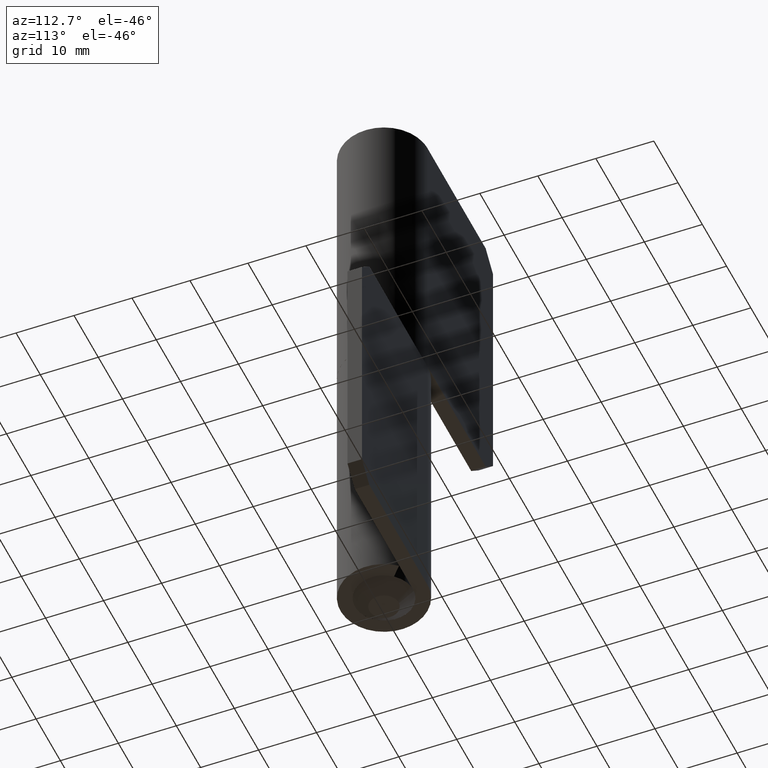
[diagram: clean part render]
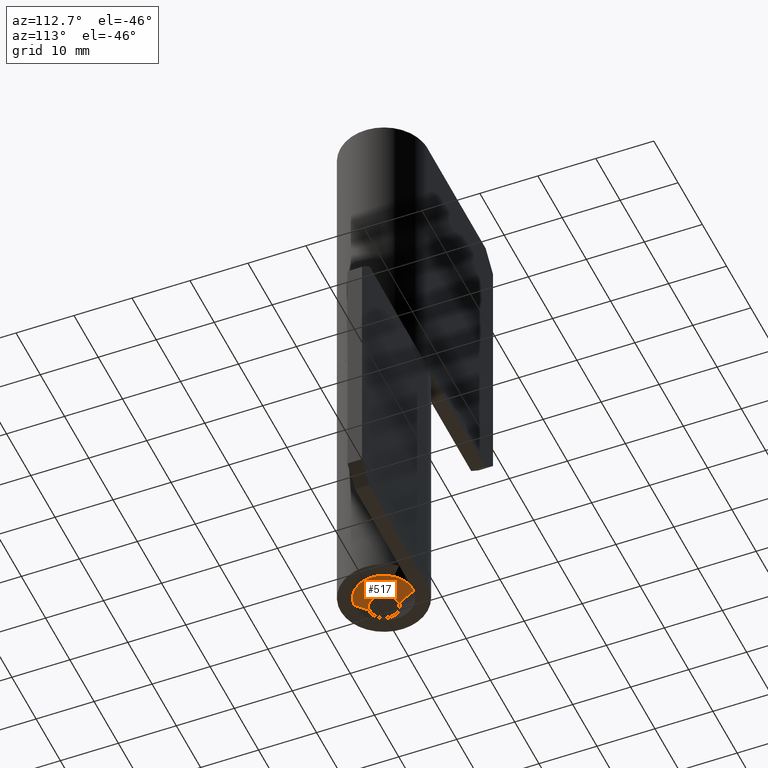
[diagram: same view with one face highlighted and labeled with its STEP entity id]
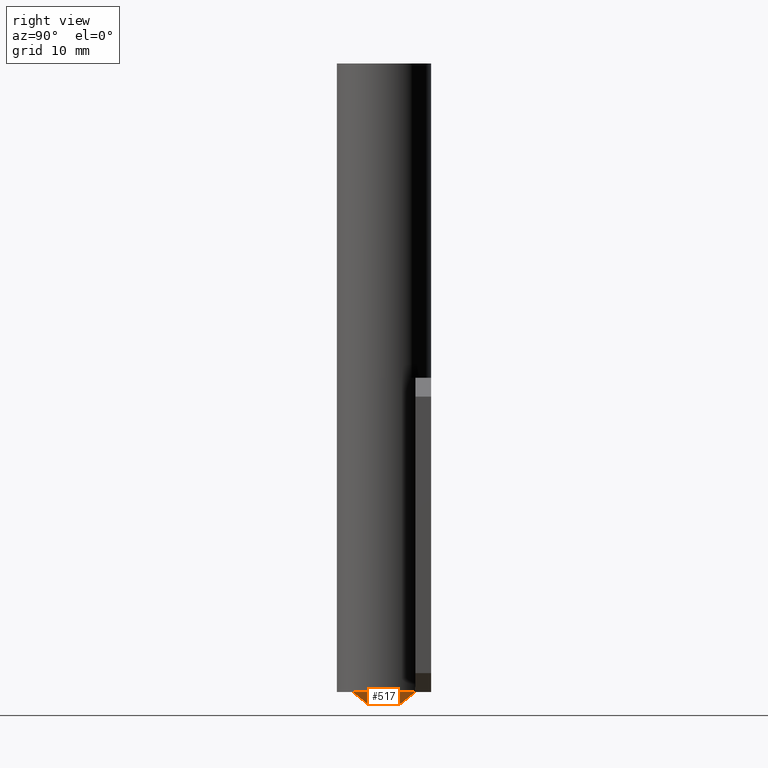
[diagram: same view with one face highlighted and labeled with its STEP entity id]
A machine part, auxiliary view. The second image highlights one B-rep face of the part: STEP entity #517.
A second angle (right view) of the same face is appended — the face is thin or edge-on in the first view.
In plain terms, the highlighted face is a freeform B-spline surface patch.
Its self-contained STEP definition (entity closure, byte-faithful):
#263=CARTESIAN_POINT('',(0.570503323848359,4.967345967161736,2.485200E-015));
#264=VERTEX_POINT('',#263);
#265=CARTESIAN_POINT('',(5.0,0.0,0.0));
#266=VERTEX_POINT('',#265);
#267=CARTESIAN_POINT('',(0.570503323848359,4.967345967161736,2.485200E-015));
#268=CARTESIAN_POINT('',(5.0,4.458615028329743,0.0));
#269=CARTESIAN_POINT('',(5.0,0.0,0.0));
#277=(BOUNDED_CURVE()B_SPLINE_CURVE(2,(#267,#268,#269),.UNSPECIFIED.,.F.,.U.)B_SPLINE_CURVE_WITH_KNOTS((3,3),(0.269767755886596,0.500000000000000),.UNSPECIFIED.)CURVE()GEOMETRIC_REPRESENTATION_ITEM()RATIONAL_B_SPLINE_CURVE((0.957343736440965,0.730266147787922,1.0))REPRESENTATION_ITEM(''));
#278=EDGE_CURVE('',#264,#266,#277,.T.);
#287=CARTESIAN_POINT('',(0.348769088438834,-4.987630330404322,3.113462E-011));
#288=VERTEX_POINT('',#287);
#294=CARTESIAN_POINT('',(5.0,0.0,0.0));
#295=CARTESIAN_POINT('',(4.999993359719275,-4.662480469988625,1.556731E-011));
#296=CARTESIAN_POINT('',(0.348769088438834,-4.987630330404322,3.113462E-011));
#304=(BOUNDED_CURVE()B_SPLINE_CURVE(2,(#294,#295,#296),.UNSPECIFIED.,.F.,.U.)B_SPLINE_CURVE_WITH_KNOTS((3,3),(0.500000000000000,0.737829682987324),.UNSPECIFIED.)CURVE()GEOMETRIC_REPRESENTATION_ITEM()RATIONAL_B_SPLINE_CURVE((1.0,0.721365194481839,0.972871408688629))REPRESENTATION_ITEM(''));
#305=EDGE_CURVE('',#266,#288,#304,.T.);
#336=CARTESIAN_POINT('',(-0.392295479203382,4.984586668699309,6.226368E-011));
#337=VERTEX_POINT('',#336);
#338=CARTESIAN_POINT('',(-0.392295479203382,4.984586668699310,6.226368E-011));
#339=CARTESIAN_POINT('',(-0.196450535598988,4.999999999999999,0.0));
#340=CARTESIAN_POINT('',(0.0,5.0,0.0));
#341=CARTESIAN_POINT('',(0.286186175274470,4.999999999999999,0.0));
#342=CARTESIAN_POINT('',(0.570503323848359,4.967345967161738,2.485200E-015));
#350=(BOUNDED_CURVE()B_SPLINE_CURVE(2,(#338,#339,#340,#341,#342),.UNSPECIFIED.,.F.,.U.)B_SPLINE_CURVE_WITH_KNOTS((3,2,3),(0.236331300594383,0.250000000000000,0.269767755886596),.UNSPECIFIED.)CURVE()GEOMETRIC_REPRESENTATION_ITEM()RATIONAL_B_SPLINE_CURVE((0.969723356091712,0.983986122536382,1.0,0.976840633398626,0.957343736440964))REPRESENTATION_ITEM(''));
#351=EDGE_CURVE('',#337,#264,#350,.T.);
#410=CARTESIAN_POINT('',(-0.196147740840807,2.492293334420906,-1.999999999834107));
#411=VERTEX_POINT('',#410);
#412=CARTESIAN_POINT('',(-0.196147740840807,2.492293334420906,-1.999999999834107));
#413=CARTESIAN_POINT('',(-0.392295479203382,4.984586668699309,6.226368E-011));
#414=QUASI_UNIFORM_CURVE('',1,(#412,#413),.UNSPECIFIED.,.F.,.U.);
#415=EDGE_CURVE('',#411,#337,#414,.T.);
#432=CARTESIAN_POINT('',(0.196147740840807,-2.492293334420906,-1.999999999834107));
#433=VERTEX_POINT('',#432);
#449=CARTESIAN_POINT('',(0.196147740840807,-2.492293334420906,-1.999999999834107));
#450=CARTESIAN_POINT('',(0.348769088438834,-4.987630330404322,3.113462E-011));
#451=QUASI_UNIFORM_CURVE('',1,(#449,#450),.UNSPECIFIED.,.F.,.U.);
#452=EDGE_CURVE('',#433,#288,#451,.T.);
#458=CARTESIAN_POINT('',(0.136090730399281,-2.434326661036248,-2.050000000000000));
#459=CARTESIAN_POINT('',(0.163537146404821,-2.432166581250395,-2.050000000000000));
#460=CARTESIAN_POINT('',(2.621230046810902,-2.238741955137687,-2.050000000000001));
#461=CARTESIAN_POINT('',(2.429986000974294,0.191244045836608,-2.050000000000000));
#462=CARTESIAN_POINT('',(2.238741955137687,2.621230046810902,-2.050000000000001));
#463=CARTESIAN_POINT('',(-0.208429166472513,2.428633502648262,-2.050000000000000));
#464=CARTESIAN_POINT('',(-0.225513898285354,2.427288905093951,-2.050000000000000));
#465=CARTESIAN_POINT('',(0.282737216169299,-5.057469684884073,0.051250000000000));
#466=CARTESIAN_POINT('',(0.339758904806455,-5.052981980662307,0.051250000000000));
#467=CARTESIAN_POINT('',(5.445773449817216,-4.651129920898629,0.051250000000000));
#468=CARTESIAN_POINT('',(5.048451685357922,0.397321764459293,0.051250000000000));
#469=CARTESIAN_POINT('',(4.651129920898629,5.445773449817216,0.051250000000000));
#470=CARTESIAN_POINT('',(-0.433024954190688,5.045641783386979,0.051250000000000));
#471=CARTESIAN_POINT('',(-0.468519579706984,5.042848295775745,0.051250000000000));
#479=(BOUNDED_SURFACE()B_SPLINE_SURFACE(2,1,((#458,#465),(#459,#466),(#460,#467),(#461,#468),(#462,#469),(#463,#470),(#464,#471)),.UNSPECIFIED.,.F.,.F.,.U.)B_SPLINE_SURFACE_WITH_KNOTS((3,1,2,1,3),(2,2),(0.0,0.135937257717495,8.526350730537509,16.916764203357520,17.000927211072881),(0.0,3.364169448444921),.UNSPECIFIED.)GEOMETRIC_REPRESENTATION_ITEM()RATIONAL_B_SPLINE_SURFACE(((1.009490617142654,1.009490617142654),(1.004745308571327,1.004745308571327),(0.707106781186548,0.707106781186548),(1.0,1.0),(0.707106781186548,0.707106781186548),(1.002937968946897,1.002937968946897),(1.005875937893794,1.005875937893794)))REPRESENTATION_ITEM('')SURFACE());
#480=ORIENTED_EDGE('',*,*,#351,.T.);
#481=ORIENTED_EDGE('',*,*,#278,.T.);
#482=ORIENTED_EDGE('',*,*,#305,.T.);
#483=ORIENTED_EDGE('',*,*,#452,.F.);
#484=CARTESIAN_POINT('',(2.499999999999800,0.0,-2.0));
#485=VERTEX_POINT('',#484);
#486=CARTESIAN_POINT('',(2.499999999999800,0.0,-2.0));
#487=CARTESIAN_POINT('',(2.499999999999801,-2.310976226345808,-2.000000000000000));
#488=CARTESIAN_POINT('',(0.196147740840807,-2.492293334420906,-1.999999999834107));
#496=(BOUNDED_CURVE()B_SPLINE_CURVE(2,(#486,#487,#488),.UNSPECIFIED.,.F.,.U.)B_SPLINE_CURVE_WITH_KNOTS((3,3),(0.500000000000000,0.736331300425743),.UNSPECIFIED.)CURVE()GEOMETRIC_REPRESENTATION_ITEM()RATIONAL_B_SPLINE_CURVE((1.0,0.723120658847741,0.969723355739772))REPRESENTATION_ITEM(''));
#497=EDGE_CURVE('',#485,#433,#496,.T.);
#498=ORIENTED_EDGE('',*,*,#497,.F.);
#499=CARTESIAN_POINT('',(-0.196147740840807,2.492293334420906,-1.999999999834107));
#500=CARTESIAN_POINT('',(-0.098225269031090,2.499999999999800,-2.0));
#501=CARTESIAN_POINT('',(0.0,2.499999999999800,-2.0));
#502=CARTESIAN_POINT('',(2.499999999999801,2.499999999999801,-2.000000000000000));
#503=CARTESIAN_POINT('',(2.499999999999800,0.0,-2.0));
#511=(BOUNDED_CURVE()B_SPLINE_CURVE(2,(#499,#500,#501,#502,#503),.UNSPECIFIED.,.F.,.U.)B_SPLINE_CURVE_WITH_KNOTS((3,2,3),(0.236331300425742,0.250000000000000,0.500000000000000),.UNSPECIFIED.)CURVE()GEOMETRIC_REPRESENTATION_ITEM()RATIONAL_B_SPLINE_CURVE((0.969723355739770,0.983986122338806,1.0,0.707106781186548,1.0))REPRESENTATION_ITEM(''));
#512=EDGE_CURVE('',#411,#485,#511,.T.);
#513=ORIENTED_EDGE('',*,*,#512,.F.);
#514=ORIENTED_EDGE('',*,*,#415,.T.);
#515=EDGE_LOOP('',(#480,#481,#482,#483,#498,#513,#514));
#516=FACE_OUTER_BOUND('',#515,.T.);
#517=ADVANCED_FACE('',(#516),#479,.T.);